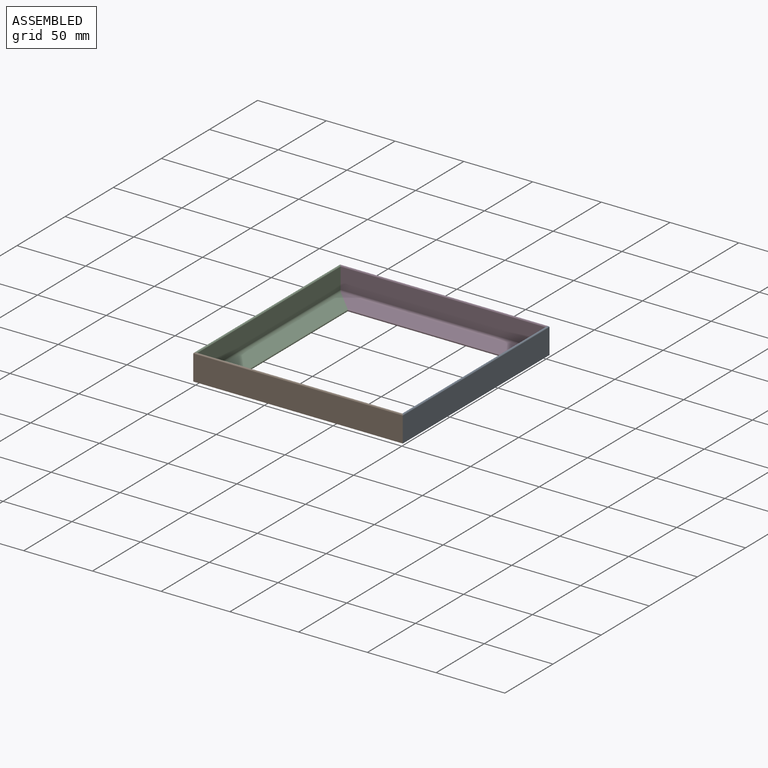
[diagram: assembled view]
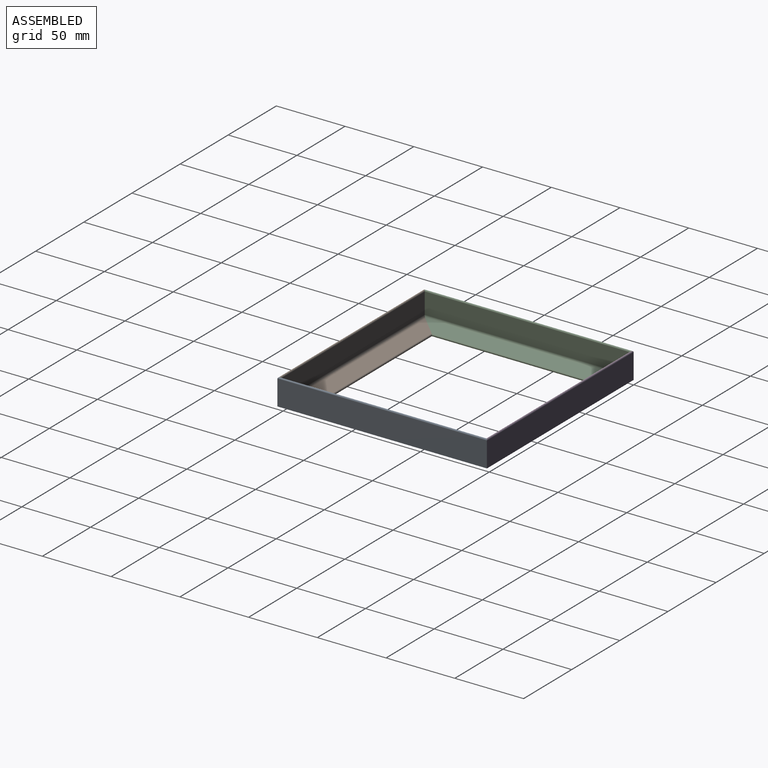
[diagram: assembled view, second angle]
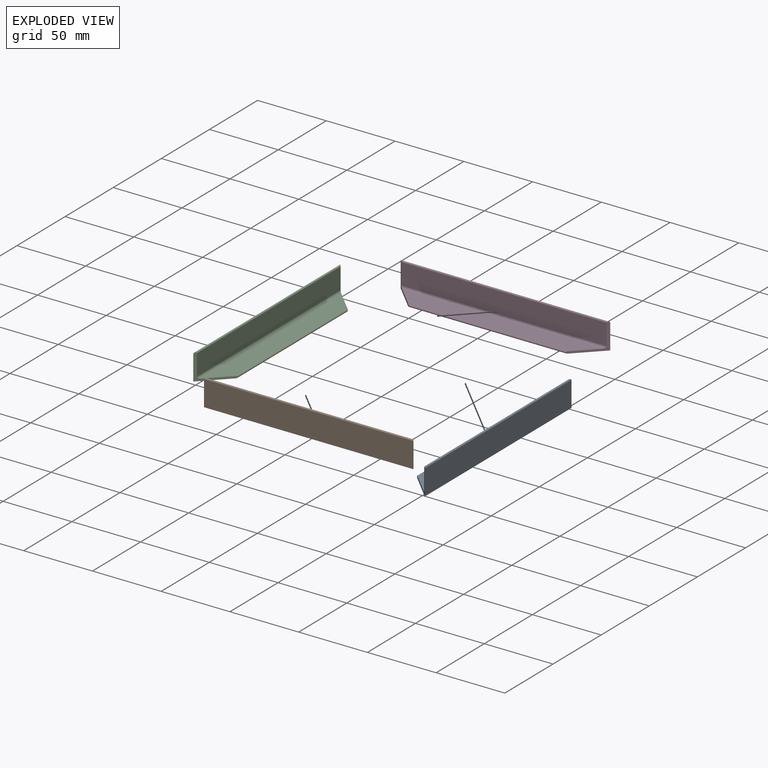
[diagram: exploded view]
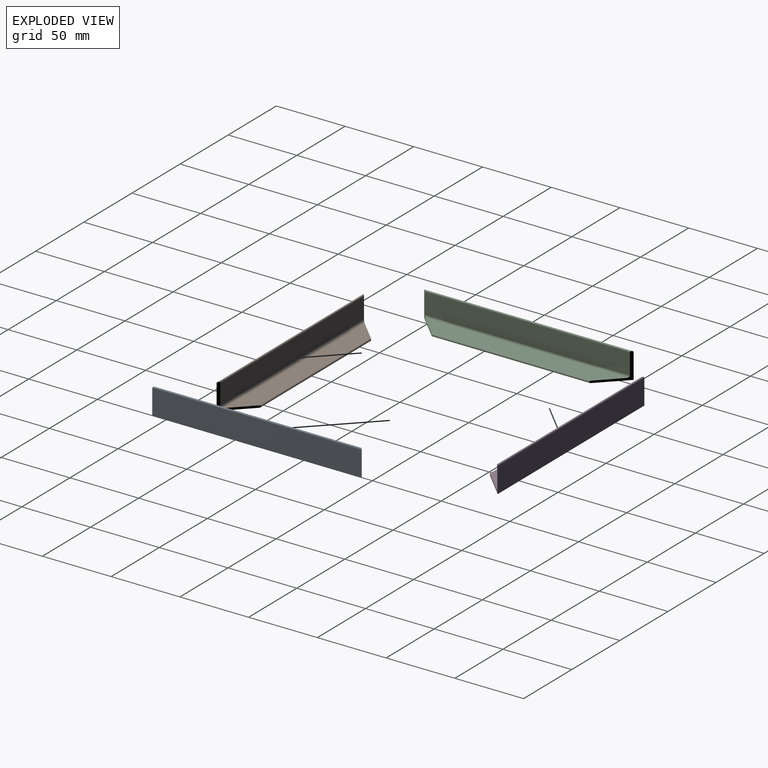
[diagram: exploded view, second angle]
ASSEMBLY  parts=4 mates=3
PART A: 9 faces, bbox 19.1x152.4x19.1 mm
  f0: plane 152.4x18.26mm, normal (0,0,-1), area 2449mm2, adj f4,f6,f7,f8
  f1: cylinder r=1.59mm len=149.23mm, axis (0,1,0), area 369.2mm2, adj f2,f5,f7,f8
  f2: plane 149.23x15.08mm, normal (1,0,0), area 2250.5mm2, adj f1,f3,f7,f8
  f3: cylinder r=0.79mm len=152.4mm, axis (0,1,0), area 376.1mm2, adj f2,f6,f7,f8
  f4: cylinder r=0.79mm len=115.89mm, axis (0,1,0), area 286.5mm2, adj f0,f5,f7,f8
  f5: plane 146.05x15.08mm, normal (0,0,1), area 1975.2mm2, adj f1,f4,f7,f8
  f6: plane 152.4x18.26mm, normal (-1,0,0), area 2782.3mm2, adj f0,f3,f7,f8
  f7: plane 19.05x19.05mm, normal (0.71,-0.71,0), area 82mm2, adj f0,f1,f2,f3,f4,f5,f6
  f8: plane 19.05x19.05mm, normal (0.71,0.71,0), area 82mm2, adj f0,f1,f2,f3,f4,f5,f6
PART B: same geometry as A
PART C: same geometry as A
PART D: same geometry as A
PLACE A rot(axis=(0,0,1),180deg) t=(152.4,-152.4,0)mm
PLACE B rot(axis=(0,0,1),90deg) t=(0,-152.4,0)mm
PLACE C at identity fixed
PLACE D rot(axis=(0,0,-1),90deg) t=(152.4,0,0)mm
MATE fastened C.f7 <-> B.f8  axis (0.71,-0.71,0) through (18.26,-134.14,0.79)mm
MATE fastened C.f8 <-> D.f7  axis (0.71,0.71,0) through (18.26,-18.26,0.79)mm
MATE fastened D.f8 <-> A.f7  axis (0.71,-0.71,0) through (134.14,-18.26,0.79)mm
